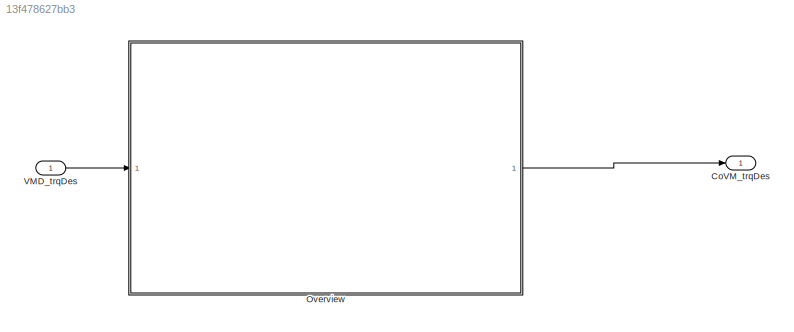
MODEL slx_13f478627bb3
KIND model
CONFIG AbsTol = auto
CONFIG EnableMultiTasking = off
CONFIG FixedStep = auto
CONFIG MaxStep = auto
CONFIG MinStep = auto
CONFIG RelTol = 1e-3
CONFIG SampleTimeConstraint = Unconstrained
CONFIG Solver = VariableStepAuto
CONFIG SolverName = VariableStepAuto
CONFIG StartTime = 0.0
CONFIG StopTime = 10.0
BLOCK [Outport] CoVM_trqDes
  IconDisplay = Port number
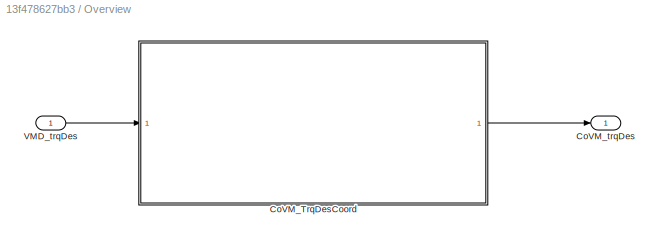
BLOCK [SubSystem] Overview
  Ports = [1, 1]
  RequestExecContextInheritance = off
BLOCK [ModelReference] Overview/CoVM_TrqDesCoord
  ModelNameDialog = CoVM_TrqDesCoord
  ModelReferenceVersion = 1.50
  Ports = [1, 1]
BLOCK [Outport] Overview/CoVM_trqDes
  IconDisplay = Port number
BLOCK [Inport] Overview/VMD_trqDes
  IconDisplay = Port number
BLOCK [Inport] VMD_trqDes
  IconDisplay = Port number
LINE Overview/CoVM_TrqDesCoord:1 -> Overview/CoVM_trqDes:1
LINE Overview/VMD_trqDes:1 -> Overview/CoVM_TrqDesCoord:1
LINE Overview:1 -> CoVM_trqDes:1
LINE VMD_trqDes:1 -> Overview:1
